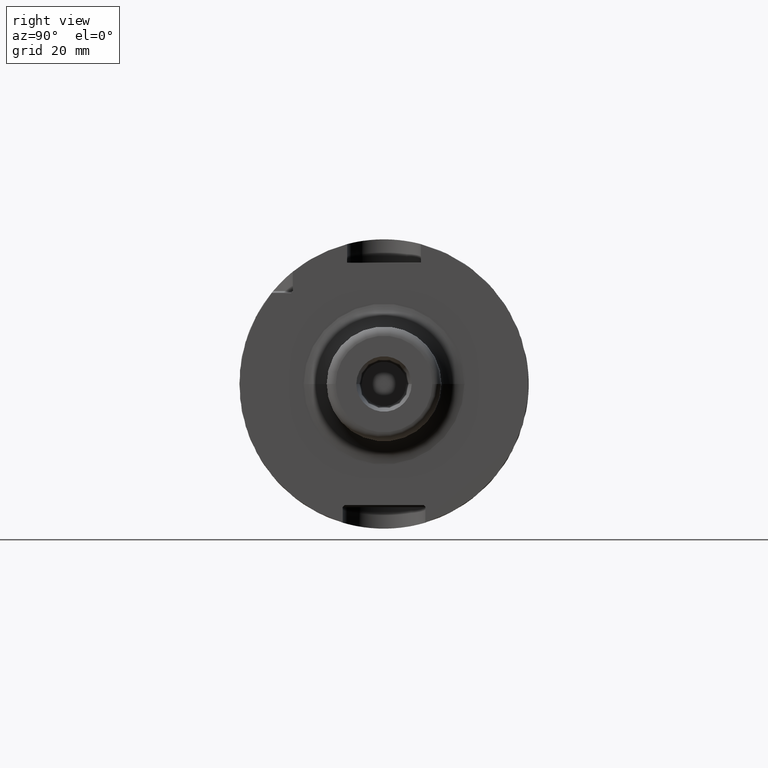
[diagram: clean part render]
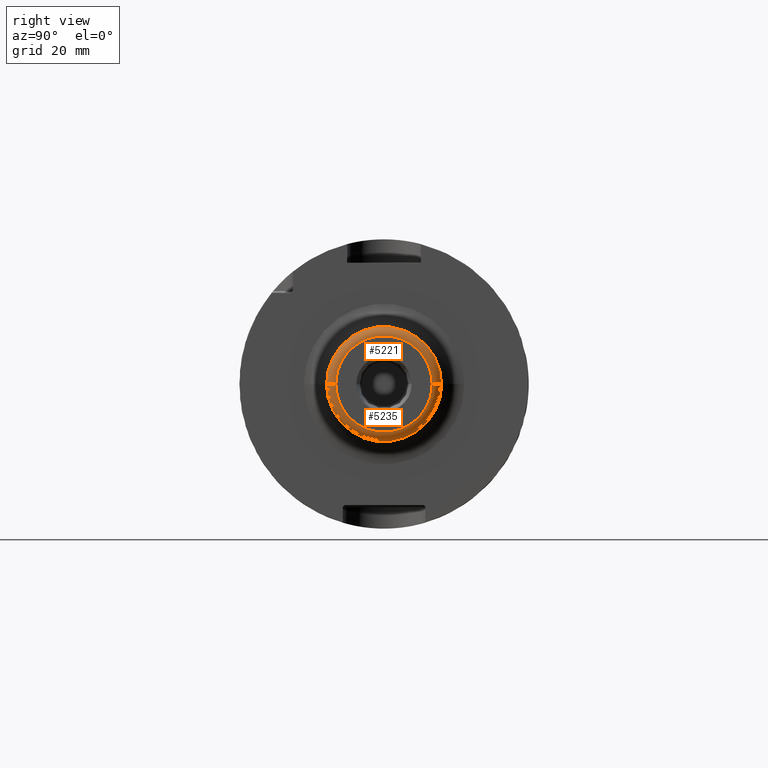
[diagram: same view with one multi-face feature highlighted, each face labeled with its STEP entity id]
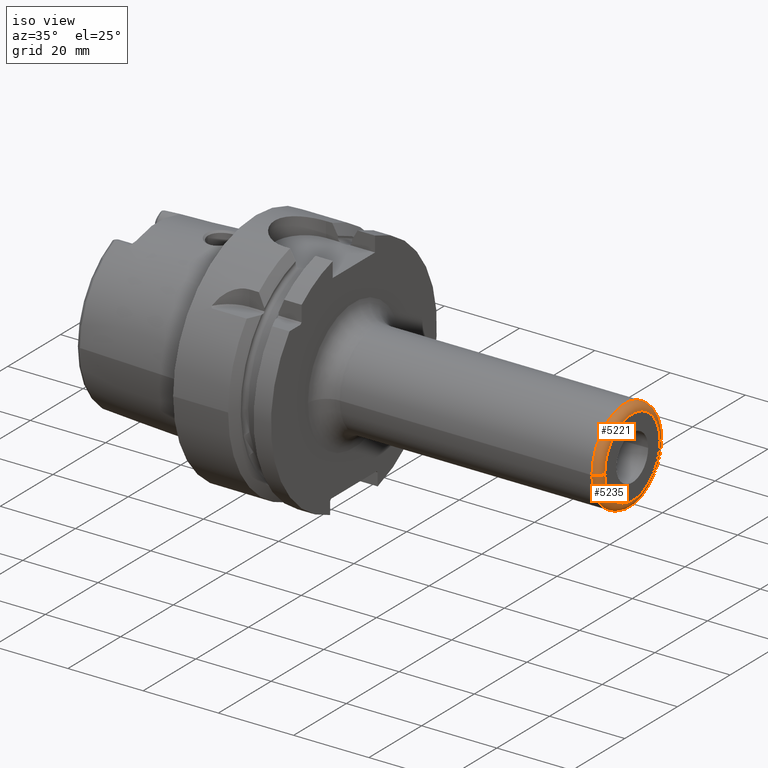
[diagram: same view with one multi-face feature highlighted, each face labeled with its STEP entity id]
A machine part, right view. The highlighted faces form ONE feature: a constant-radius fillet chain: 2 tangent blend faces with common blend radius 2 mm. The faces share edges in the B-rep.
A second angle (iso view) of the same feature is appended — it is thin or edge-on in the first view.
Their STEP definitions:
[1] entity #5221 (Torus):
#1966=CARTESIAN_POINT('',(9.8E1,0.E0,0.E0));
#1967=DIRECTION('',(-1.E0,0.E0,0.E0));
#1968=DIRECTION('',(0.E0,-1.E0,0.E0));
#1969=AXIS2_PLACEMENT_3D('',#1966,#1967,#1968);
#1976=CARTESIAN_POINT('',(9.8E1,-1.05E1,-9.007163070951E-12));
#1977=DIRECTION('',(0.E0,-8.578250956792E-13,1.E0));
#1978=DIRECTION('',(0.E0,-1.E0,-8.578250956792E-13));
#1979=AXIS2_PLACEMENT_3D('',#1976,#1977,#1978);
#1981=CARTESIAN_POINT('',(9.8E1,1.05E1,9.010077406391E-12));
#1982=DIRECTION('',(0.E0,8.581026514354E-13,-1.E0));
#1983=DIRECTION('',(0.E0,1.E0,8.581026514354E-13));
#1984=AXIS2_PLACEMENT_3D('',#1981,#1982,#1983);
#2009=CARTESIAN_POINT('',(1.E2,0.E0,0.E0));
#2010=DIRECTION('',(-1.E0,0.E0,0.E0));
#2011=DIRECTION('',(0.E0,-1.E0,0.E0));
#2012=AXIS2_PLACEMENT_3D('',#2009,#2010,#2011);
#3056=CARTESIAN_POINT('',(9.8E1,1.25E1,0.E0));
#3057=CARTESIAN_POINT('',(9.8E1,-1.25E1,0.E0));
#3058=VERTEX_POINT('',#3056);
#3059=VERTEX_POINT('',#3057);
#3060=CARTESIAN_POINT('',(1.E2,1.05E1,0.E0));
#3061=CARTESIAN_POINT('',(1.E2,-1.05E1,0.E0));
#3062=VERTEX_POINT('',#3060);
#3063=VERTEX_POINT('',#3061);
#5207=CARTESIAN_POINT('',(9.8E1,0.E0,0.E0));
#5208=DIRECTION('',(1.E0,0.E0,0.E0));
#5209=DIRECTION('',(0.E0,-9.999825118798E-1,-5.914045524579E-3));
#5210=AXIS2_PLACEMENT_3D('',#5207,#5208,#5209);
#5211=TOROIDAL_SURFACE('',#5210,1.05E1,2.E0);
#5212=ORIENTED_EDGE('',*,*,#5197,.T.);
#5214=ORIENTED_EDGE('',*,*,#5213,.T.);
#5216=ORIENTED_EDGE('',*,*,#5215,.F.);
#5218=ORIENTED_EDGE('',*,*,#5217,.F.);
#5219=EDGE_LOOP('',(#5212,#5214,#5216,#5218));
#5220=FACE_OUTER_BOUND('',#5219,.F.);
#5221=ADVANCED_FACE('',(#5220),#5211,.T.);
#1970=CIRCLE('',#1969,1.25E1);
#1980=CIRCLE('',#1979,2.E0);
#1985=CIRCLE('',#1984,2.E0);
#2013=CIRCLE('',#2012,1.05E1);
#5197=EDGE_CURVE('',#3059,#3058,#1970,.T.);
#5213=EDGE_CURVE('',#3058,#3062,#1985,.T.);
#5215=EDGE_CURVE('',#3063,#3062,#2013,.T.);
#5217=EDGE_CURVE('',#3059,#3063,#1980,.T.);
[2] entity #5235 (Torus):
#1976=CARTESIAN_POINT('',(9.8E1,-1.05E1,-9.007163070951E-12));
#1977=DIRECTION('',(0.E0,-8.578250956792E-13,1.E0));
#1978=DIRECTION('',(0.E0,-1.E0,-8.578250956792E-13));
#1979=AXIS2_PLACEMENT_3D('',#1976,#1977,#1978);
#1981=CARTESIAN_POINT('',(9.8E1,1.05E1,9.010077406391E-12));
#1982=DIRECTION('',(0.E0,8.581026514354E-13,-1.E0));
#1983=DIRECTION('',(0.E0,1.E0,8.581026514354E-13));
#1984=AXIS2_PLACEMENT_3D('',#1981,#1982,#1983);
#1986=CARTESIAN_POINT('',(9.8E1,0.E0,0.E0));
#1987=DIRECTION('',(-1.E0,0.E0,0.E0));
#1988=DIRECTION('',(0.E0,1.E0,0.E0));
#1989=AXIS2_PLACEMENT_3D('',#1986,#1987,#1988);
#2004=CARTESIAN_POINT('',(1.E2,0.E0,0.E0));
#2005=DIRECTION('',(-1.E0,0.E0,0.E0));
#2006=DIRECTION('',(0.E0,1.E0,0.E0));
#2007=AXIS2_PLACEMENT_3D('',#2004,#2005,#2006);
#3056=CARTESIAN_POINT('',(9.8E1,1.25E1,0.E0));
#3057=CARTESIAN_POINT('',(9.8E1,-1.25E1,0.E0));
#3058=VERTEX_POINT('',#3056);
#3059=VERTEX_POINT('',#3057);
#3060=CARTESIAN_POINT('',(1.E2,1.05E1,0.E0));
#3061=CARTESIAN_POINT('',(1.E2,-1.05E1,0.E0));
#3062=VERTEX_POINT('',#3060);
#3063=VERTEX_POINT('',#3061);
#5222=CARTESIAN_POINT('',(9.8E1,0.E0,0.E0));
#5223=DIRECTION('',(1.E0,0.E0,0.E0));
#5224=DIRECTION('',(0.E0,9.999825118798E-1,5.914045524580E-3));
#5225=AXIS2_PLACEMENT_3D('',#5222,#5223,#5224);
#5226=TOROIDAL_SURFACE('',#5225,1.05E1,2.E0);
#5228=ORIENTED_EDGE('',*,*,#5227,.T.);
#5229=ORIENTED_EDGE('',*,*,#5217,.T.);
#5231=ORIENTED_EDGE('',*,*,#5230,.F.);
#5232=ORIENTED_EDGE('',*,*,#5213,.F.);
#5233=EDGE_LOOP('',(#5228,#5229,#5231,#5232));
#5234=FACE_OUTER_BOUND('',#5233,.F.);
#5235=ADVANCED_FACE('',(#5234),#5226,.T.);
#1980=CIRCLE('',#1979,2.E0);
#1985=CIRCLE('',#1984,2.E0);
#1990=CIRCLE('',#1989,1.25E1);
#2008=CIRCLE('',#2007,1.05E1);
#5213=EDGE_CURVE('',#3058,#3062,#1985,.T.);
#5217=EDGE_CURVE('',#3059,#3063,#1980,.T.);
#5227=EDGE_CURVE('',#3058,#3059,#1990,.T.);
#5230=EDGE_CURVE('',#3062,#3063,#2008,.T.);